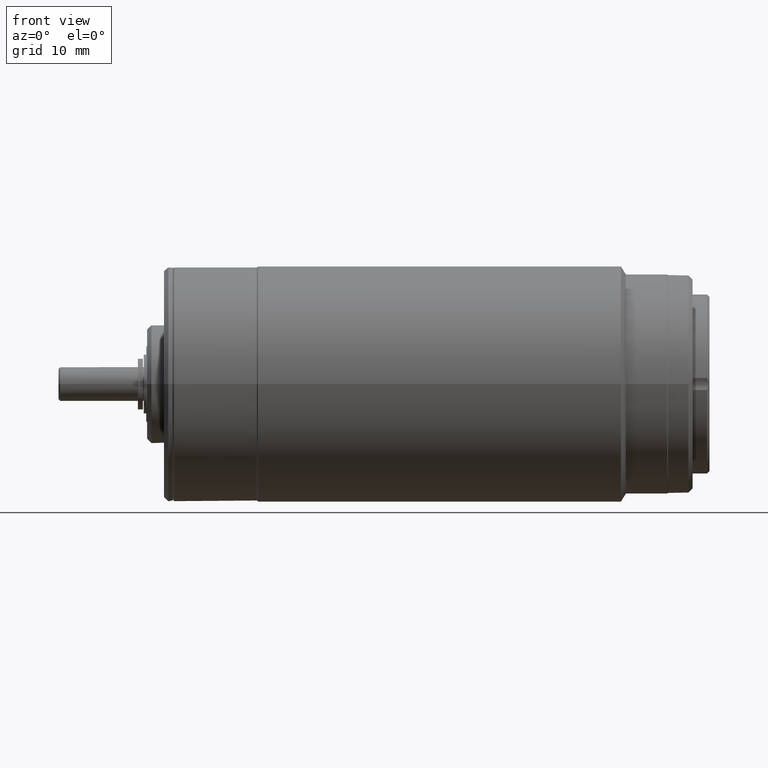
[diagram: clean part render]
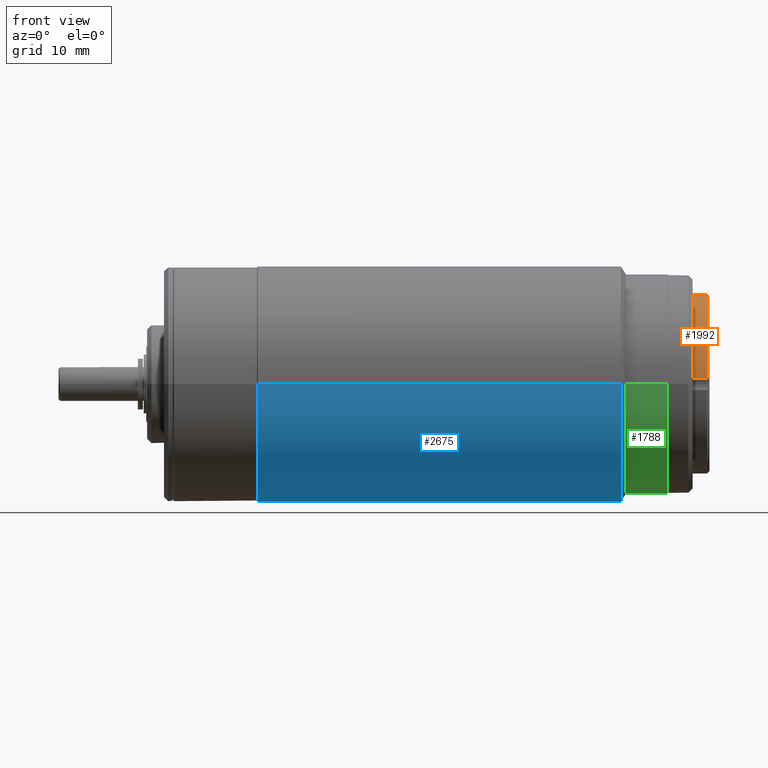
[diagram: same view with three faces highlighted in distinct colors, each labeled with its STEP entity id]
A machine part, front view with three faces highlighted in distinct colors.
Their STEP definitions:

[orange] entity #1992 — the highlighted cylindrical surface (partial cylindrical patch) has radius 10.6 mm, axis along (1, 0, 0).
#112=CARTESIAN_POINT('',(3.394999643023E1,6.8E0,8.131420197799E0));
#119=CARTESIAN_POINT('',(3.394999196802E1,-1.057647058823E1,7.058823529398E-1));
#133=DIRECTION('',(-1.E0,-7.324894280939E-13,0.E0));
#134=VECTOR('',#133,1.699991968021E0);
#135=CARTESIAN_POINT('',(3.394999196802E1,-1.057647058823E1,7.058823529398E-1));
#136=LINE('',#135,#134);
#137=DIRECTION('',(1.E0,-1.556927793280E-13,-1.006777963712E-7));
#138=VECTOR('',#137,1.699996430233E0);
#139=CARTESIAN_POINT('',(3.225E1,6.8E0,8.131420368950E0));
#140=LINE('',#139,#138);
#141=CARTESIAN_POINT('',(3.394999196802E1,0.E0,0.E0));
#142=DIRECTION('',(1.E0,0.E0,0.E0));
#143=DIRECTION('',(0.E0,6.415094339623E-1,7.671151452927E-1));
#144=AXIS2_PLACEMENT_3D('',#141,#142,#143);
#146=CARTESIAN_POINT('',(3.225E1,0.E0,0.E0));
#147=DIRECTION('',(1.E0,0.E0,0.E0));
#148=DIRECTION('',(0.E0,6.415094339623E-1,7.671151452927E-1));
#149=AXIS2_PLACEMENT_3D('',#146,#147,#148);
#1440=VERTEX_POINT('',#112);
#1450=VERTEX_POINT('',#119);
#1452=CARTESIAN_POINT('',(3.225E1,-1.057647058823E1,7.058823529398E-1));
#1453=VERTEX_POINT('',#1452);
#1454=CARTESIAN_POINT('',(3.225E1,6.8E0,8.131420540102E0));
#1455=VERTEX_POINT('',#1454);
#1980=CARTESIAN_POINT('',(3.214599100767E1,0.E0,0.E0));
#1981=DIRECTION('',(1.E0,0.E0,0.E0));
#1982=DIRECTION('',(0.E0,-1.E0,0.E0));
#1983=AXIS2_PLACEMENT_3D('',#1980,#1981,#1982);
#1984=CYLINDRICAL_SURFACE('',#1983,1.06E1);
#1985=ORIENTED_EDGE('',*,*,#1970,.T.);
#1987=ORIENTED_EDGE('',*,*,#1986,.F.);
#1988=ORIENTED_EDGE('',*,*,#1918,.T.);
#1989=ORIENTED_EDGE('',*,*,#1949,.T.);
#1990=EDGE_LOOP('',(#1985,#1987,#1988,#1989));
#1991=FACE_OUTER_BOUND('',#1990,.F.);
#1992=ADVANCED_FACE('',(#1991),#1984,.T.);
#145=CIRCLE('',#144,1.06E1);
#150=CIRCLE('',#149,1.06E1);
#1918=EDGE_CURVE('',#1455,#1440,#140,.T.);
#1949=EDGE_CURVE('',#1440,#1450,#145,.T.);
#1970=EDGE_CURVE('',#1450,#1453,#136,.T.);
#1986=EDGE_CURVE('',#1455,#1453,#150,.T.);

[blue] entity #2675 — the highlighted cylindrical surface (partial cylindrical patch) has radius 14 mm, axis along (-1, 0, 0).
#643=CARTESIAN_POINT('',(2.375821597408E1,0.E0,0.E0));
#644=DIRECTION('',(1.E0,0.E0,0.E0));
#645=DIRECTION('',(0.E0,-1.E0,0.E0));
#646=AXIS2_PLACEMENT_3D('',#643,#644,#645);
#648=DIRECTION('',(1.E0,-1.033168877168E-14,0.E0));
#649=VECTOR('',#648,4.298321597408E1);
#650=CARTESIAN_POINT('',(-1.9225E1,1.4E1,0.E0));
#651=LINE('',#650,#649);
#657=DIRECTION('',(-1.E0,-2.066337754336E-14,0.E0));
#658=VECTOR('',#657,4.298321597408E1);
#659=CARTESIAN_POINT('',(2.375821597408E1,-1.4E1,0.E0));
#660=LINE('',#659,#658);
#674=CARTESIAN_POINT('',(-1.9225E1,0.E0,0.E0));
#675=DIRECTION('',(1.E0,0.E0,0.E0));
#676=DIRECTION('',(0.E0,-1.E0,0.E0));
#677=AXIS2_PLACEMENT_3D('',#674,#675,#676);
#1559=CARTESIAN_POINT('',(2.375821597408E1,1.4E1,0.E0));
#1560=VERTEX_POINT('',#1559);
#1561=CARTESIAN_POINT('',(2.375821597408E1,-1.4E1,0.E0));
#1562=VERTEX_POINT('',#1561);
#1563=CARTESIAN_POINT('',(-1.9225E1,1.4E1,0.E0));
#1564=VERTEX_POINT('',#1563);
#1565=CARTESIAN_POINT('',(-1.9225E1,-1.4E1,0.E0));
#1566=VERTEX_POINT('',#1565);
#2661=CARTESIAN_POINT('',(2.461788029356E1,0.E0,0.E0));
#2662=DIRECTION('',(-1.E0,0.E0,0.E0));
#2663=DIRECTION('',(0.E0,1.E0,0.E0));
#2664=AXIS2_PLACEMENT_3D('',#2661,#2662,#2663);
#2665=CYLINDRICAL_SURFACE('',#2664,1.4E1);
#2667=ORIENTED_EDGE('',*,*,#2666,.F.);
#2669=ORIENTED_EDGE('',*,*,#2668,.F.);
#2671=ORIENTED_EDGE('',*,*,#2670,.F.);
#2672=ORIENTED_EDGE('',*,*,#2654,.T.);
#2673=EDGE_LOOP('',(#2667,#2669,#2671,#2672));
#2674=FACE_OUTER_BOUND('',#2673,.F.);
#2675=ADVANCED_FACE('',(#2674),#2665,.T.);
#647=CIRCLE('',#646,1.4E1);
#678=CIRCLE('',#677,1.4E1);
#2654=EDGE_CURVE('',#1562,#1560,#647,.T.);
#2666=EDGE_CURVE('',#1564,#1560,#651,.T.);
#2668=EDGE_CURVE('',#1566,#1564,#678,.T.);
#2670=EDGE_CURVE('',#1562,#1566,#660,.T.);

[green] entity #1788 — the highlighted cylindrical surface (partial cylindrical patch) has radius 12.975 mm, axis along (-1, 0, 0).
#1=CARTESIAN_POINT('',(2.925E1,0.E0,-1.663513766024E-13));
#2=DIRECTION('',(-1.E0,0.E0,0.E0));
#3=DIRECTION('',(0.E0,1.E0,1.282091534508E-14));
#4=AXIS2_PLACEMENT_3D('',#1,#2,#3);
#6=CARTESIAN_POINT('',(2.925E1,0.E0,-1.663513766024E-13));
#7=DIRECTION('',(-1.E0,0.E0,0.E0));
#8=DIRECTION('',(0.E0,0.E0,-1.E0));
#9=AXIS2_PLACEMENT_3D('',#6,#7,#8);
#617=DIRECTION('',(-1.E0,-9.883069419444E-12,5.584156746664E-11));
#618=VECTOR('',#617,4.900000000046E0);
#619=CARTESIAN_POINT('',(2.925000000005E1,-1.297499999995E1,
-4.106786881823E-10));
#620=LINE('',#619,#618);
#621=DIRECTION('',(1.E0,-9.789538794024E-12,8.381172925402E-11));
#622=VECTOR('',#621,4.900000000046E0);
#623=CARTESIAN_POINT('',(2.435E1,1.2975E1,0.E0));
#624=LINE('',#623,#622);
#638=CARTESIAN_POINT('',(2.435E1,0.E0,0.E0));
#639=DIRECTION('',(1.E0,0.E0,0.E0));
#640=DIRECTION('',(0.E0,-1.E0,0.E0));
#641=AXIS2_PLACEMENT_3D('',#638,#639,#640);
#1391=CARTESIAN_POINT('',(2.925E1,0.E0,-1.2975E1));
#1392=CARTESIAN_POINT('',(2.925E1,-1.2975E1,0.E0));
#1393=VERTEX_POINT('',#1391);
#1394=VERTEX_POINT('',#1392);
#1395=CARTESIAN_POINT('',(2.925E1,1.2975E1,0.E0));
#1396=VERTEX_POINT('',#1395);
#1555=CARTESIAN_POINT('',(2.435E1,-1.2975E1,-1.370550075933E-10));
#1556=VERTEX_POINT('',#1555);
#1557=CARTESIAN_POINT('',(2.435E1,1.2975E1,0.E0));
#1558=VERTEX_POINT('',#1557);
#1771=CARTESIAN_POINT('',(2.935400899234E1,0.E0,0.E0));
#1772=DIRECTION('',(-1.E0,0.E0,0.E0));
#1773=DIRECTION('',(0.E0,1.E0,0.E0));
#1774=AXIS2_PLACEMENT_3D('',#1771,#1772,#1773);
#1775=CYLINDRICAL_SURFACE('',#1774,1.2975E1);
#1777=ORIENTED_EDGE('',*,*,#1776,.F.);
#1779=ORIENTED_EDGE('',*,*,#1778,.F.);
#1781=ORIENTED_EDGE('',*,*,#1780,.F.);
#1783=ORIENTED_EDGE('',*,*,#1782,.F.);
#1785=ORIENTED_EDGE('',*,*,#1784,.F.);
#1786=EDGE_LOOP('',(#1777,#1779,#1781,#1783,#1785));
#1787=FACE_OUTER_BOUND('',#1786,.F.);
#1788=ADVANCED_FACE('',(#1787),#1775,.T.);
#5=CIRCLE('',#4,1.2975E1);
#10=CIRCLE('',#9,1.2975E1);
#642=CIRCLE('',#641,1.2975E1);
#1776=EDGE_CURVE('',#1393,#1394,#10,.T.);
#1778=EDGE_CURVE('',#1396,#1393,#5,.T.);
#1780=EDGE_CURVE('',#1558,#1396,#624,.T.);
#1782=EDGE_CURVE('',#1556,#1558,#642,.T.);
#1784=EDGE_CURVE('',#1394,#1556,#620,.T.);